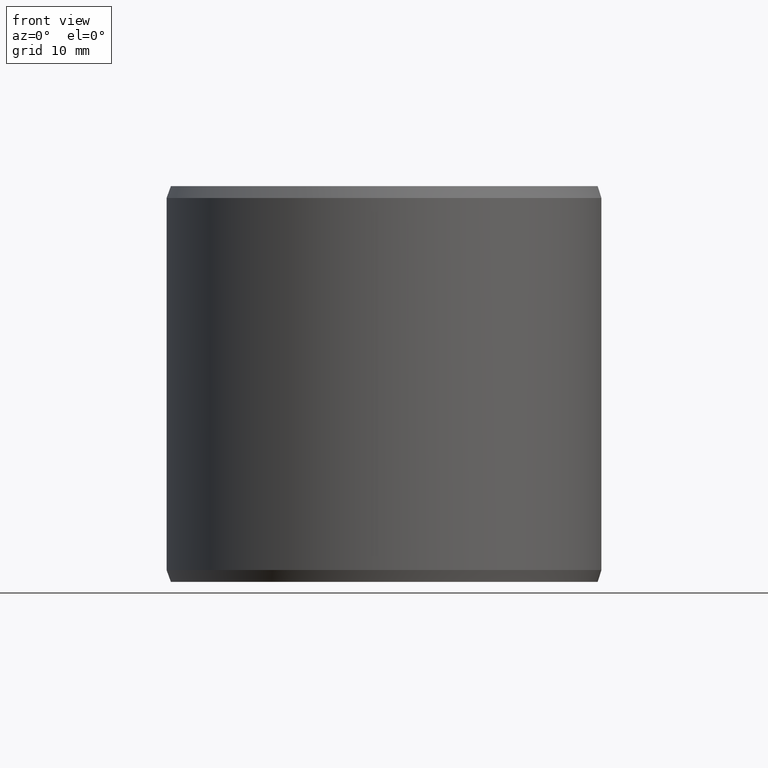
[diagram: clean part render]
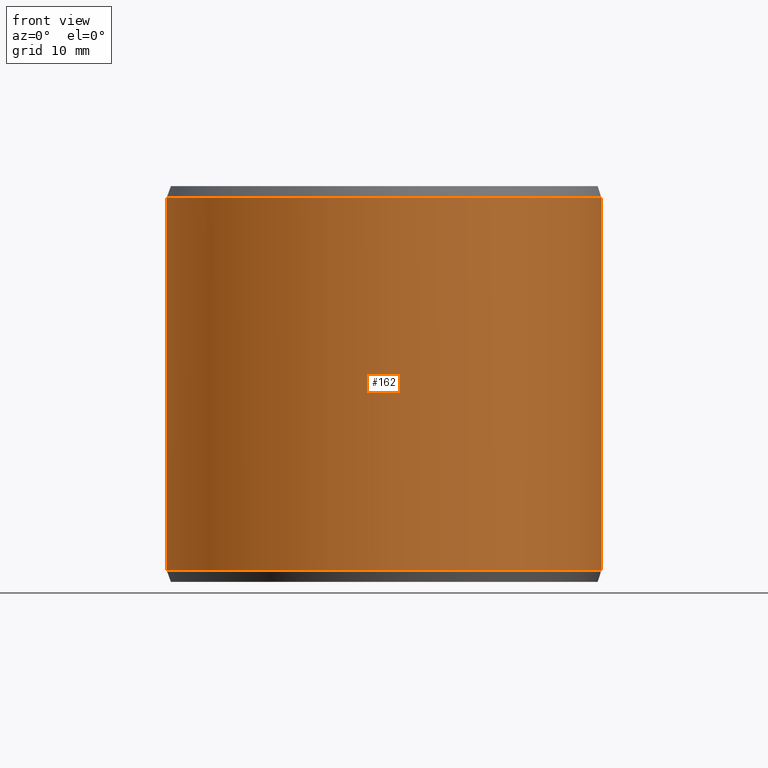
[diagram: same view with one face highlighted and labeled with its STEP entity id]
A machine part, front view. The second image highlights one B-rep face of the part: STEP entity #162.
In plain terms, the highlighted cylindrical surface (partial cylindrical patch) has radius 22 mm, axis along (-0, 0, -1).
Its self-contained STEP definition (entity closure, byte-faithful):
#162=ADVANCED_FACE('',(#185,#186),#187,.T.);
#185=FACE_OUTER_BOUND('',#211,.T.);
#186=FACE_BOUND('',#212,.T.);
#187=CYLINDRICAL_SURFACE('',#213,0.022);
#211=EDGE_LOOP('',(#289,#290,#291,#292));
#212=EDGE_LOOP('',(#293));
#213=AXIS2_PLACEMENT_3D('',#294,#295,#296);
#289=ORIENTED_EDGE('',*,*,#314,.T.);
#290=ORIENTED_EDGE('',*,*,#323,.F.);
#291=ORIENTED_EDGE('',*,*,#309,.F.);
#292=ORIENTED_EDGE('',*,*,#324,.T.);
#293=ORIENTED_EDGE('',*,*,#327,.T.);
#294=CARTESIAN_POINT('',(-6.93889390390723E-018,-6.93889390390723E-018,0.0));
#295=DIRECTION('',(6.12323399573677E-017,0.0,-1.0));
#296=DIRECTION('',(-1.0,0.0,-6.12323399573677E-017));
#309=EDGE_CURVE('',#341,#342,#343,.T.);
#314=EDGE_CURVE('',#351,#349,#352,.T.);
#323=EDGE_CURVE('',#342,#349,#365,.T.);
#324=EDGE_CURVE('',#341,#351,#366,.T.);
#327=EDGE_CURVE('',#370,#370,#371,.T.);
#341=VERTEX_POINT('',#389);
#342=VERTEX_POINT('',#390);
#343=CIRCLE('',#391,0.022);
#349=VERTEX_POINT('',#399);
#351=VERTEX_POINT('',#402);
#352=CIRCLE('',#403,0.022);
#365=LINE('',#422,#423);
#366=LINE('',#424,#425);
#370=VERTEX_POINT('',#495);
#371=B_SPLINE_CURVE_WITH_KNOTS('',3,(#496,#497,#498,#499,#500,#501,#502,#503,#504,#505,#506,#507,#508,#509,#510,#511,#512,#513,#514,#515,#516,#517,#518,#519,#520,#521,#522,#523,#524,#525,#526,#527,#528,#529,#530,#531,#532,#533,#534,#535,#536,#537,#538,#539,#540,#541,#542,#543,#544,#545,#546,#547,#548,#549,#550,#551,#552,#553,#554,#555,#556,#557,#558,#559,#560,#561),.UNSPECIFIED.,.T.,.F.,(2,2,2,2,2,2,2,2,2,2,2,2,2,2,2,2,2,2,2,2,2,2,2,2,2,2,2,2,2,2,2,2,2,2,2),(-0.000783143181487496,0.0,0.000783143181487496,0.00156628636297499,0.00234942954446249,0.00313257272594999,0.00391571590743748,0.00469885908892498,0.00548200227041248,0.00626514545189997,0.00704828863338747,0.00783143181487496,0.00861457499636246,0.00939771817784996,0.0101808613593375,0.010964004540825,0.0117471477223124,0.0125302909037999,0.0133134340852874,0.0140965772667749,0.0148797204482624,0.0156628636297499,0.0164460068112374,0.0172291499927249,0.0180122931742124,0.0187954363556999,0.0195785795371874,0.0203617227186749,0.0211448659001624,0.0219280090816499,0.0227111522631374,0.0234942954446249,0.0242774386261124,0.0250605818075999,0.0258437249890874),.UNSPECIFIED.);
#389=CARTESIAN_POINT('',(0.000383952941620232,0.0219966492934406,0.0012));
#390=CARTESIAN_POINT('',(-6.93889390390723E-018,0.022,0.0012));
#391=AXIS2_PLACEMENT_3D('',#575,#576,#577);
#399=CARTESIAN_POINT('',(-8.67361737988404E-018,0.022,0.0388));
#402=CARTESIAN_POINT('',(0.00038395294162023,0.0219966492934406,0.0388));
#403=AXIS2_PLACEMENT_3D('',#584,#585,#586);
#422=CARTESIAN_POINT('',(-6.93889390390723E-018,0.022,0.0012));
#423=VECTOR('',#599,1.0);
#424=CARTESIAN_POINT('',(0.000383952941620232,0.0219966492934406,0.0012));
#425=VECTOR('',#600,1.0);
#495=CARTESIAN_POINT('',(0.0164832116264059,-0.0145706463301777,0.02));
#496=CARTESIAN_POINT('',(0.0164832116264059,-0.0145706463301777,0.0197351496906929));
#497=CARTESIAN_POINT('',(0.0164832116264058,-0.0145706463301777,0.0202648503093071));
#498=CARTESIAN_POINT('',(0.0165007922203708,-0.0145508260703122,0.0205251622067491));
#499=CARTESIAN_POINT('',(0.0165691298990779,-0.014472961604862,0.0210371156822544));
#500=CARTESIAN_POINT('',(0.0166207341600073,-0.0144139371658827,0.0212914496460818));
#501=CARTESIAN_POINT('',(0.0167535756167427,-0.0142593159966995,0.0217755682362726));
#502=CARTESIAN_POINT('',(0.0168342249639935,-0.0141644069047839,0.022005092029244));
#503=CARTESIAN_POINT('',(0.0170217603192587,-0.0139384801444182,0.0224394736495143));
#504=CARTESIAN_POINT('',(0.0171293711168049,-0.0138064877587962,0.0226447052538363));
#505=CARTESIAN_POINT('',(0.0173599083670454,-0.013515474115946,0.0230128029697214));
#506=CARTESIAN_POINT('',(0.0174837557700863,-0.0133553932541377,0.023178183676375));
#507=CARTESIAN_POINT('',(0.0177469232667903,-0.0130036517703047,0.0234706254426348));
#508=CARTESIAN_POINT('',(0.0178837313304818,-0.0128152367302046,0.023594544595303));
#509=CARTESIAN_POINT('',(0.0181603114118631,-0.0124201943695015,0.023794225821988));
#510=CARTESIAN_POINT('',(0.0183021107450861,-0.0122106322407033,0.0238713306132433));
#511=CARTESIAN_POINT('',(0.0185839166479724,-0.0117773018754005,0.0239743061354708));
#512=CARTESIAN_POINT('',(0.0187217908055454,-0.0115569423212521,0.0239998471774273));
#513=CARTESIAN_POINT('',(0.018991172676394,-0.0111087230210648,0.0240001514682181));
#514=CARTESIAN_POINT('',(0.0191238945455463,-0.0108785404612039,0.0239740530286047));
#515=CARTESIAN_POINT('',(0.01937268558632,-0.0104290478150604,0.0238717685730337));
#516=CARTESIAN_POINT('',(0.0194897839087334,-0.0102082029811458,0.0237960955611503));
#517=CARTESIAN_POINT('',(0.0197105755255259,-0.00977508554264033,0.0235952766913464));
#518=CARTESIAN_POINT('',(0.0198133104249374,-0.00956451962695219,0.0234702787306186));
#519=CARTESIAN_POINT('',(0.0199985347712013,-0.00917092758091256,0.0231810494640605));
#520=CARTESIAN_POINT('',(0.0200824670445974,-0.00898497310037473,0.0230151529159647));
#521=CARTESIAN_POINT('',(0.020232833917774,-0.00864104483656754,0.0226430864639846));
#522=CARTESIAN_POINT('',(0.0202974777933827,-0.00848727628499315,0.0224417174980967));
#523=CARTESIAN_POINT('',(0.0204087110412513,-0.0082162021120089,0.0220091166018946));
#524=CARTESIAN_POINT('',(0.0204556499945846,-0.0080979470178954,0.0217750149544805));
#525=CARTESIAN_POINT('',(0.0205297130087779,-0.0079083023704716,0.02129139065483));
#526=CARTESIAN_POINT('',(0.0205571437777756,-0.00783623448227296,0.0210420806438573));
#527=CARTESIAN_POINT('',(0.0205941411690446,-0.00773848051433647,0.020528363873268));
#528=CARTESIAN_POINT('',(0.0206034789732122,-0.00771340743197346,0.0202629166769863));
#529=CARTESIAN_POINT('',(0.0206035532515159,-0.00771320902239598,0.0197402721264132));
#530=CARTESIAN_POINT('',(0.0205945894878762,-0.00773728702455651,0.0194801569585405));
#531=CARTESIAN_POINT('',(0.0205576283499689,-0.00783496287796358,0.0189624089064897));
#532=CARTESIAN_POINT('',(0.0205299444807146,-0.00790769287593807,0.0187107370270379));
#533=CARTESIAN_POINT('',(0.0204563789592809,-0.00809609701496201,0.0182291369060092));
#534=CARTESIAN_POINT('',(0.0204098260314475,-0.00821344684539773,0.0179957201867439));
#535=CARTESIAN_POINT('',(0.0202979883170471,-0.00848606964366565,0.0175597747687284));
#536=CARTESIAN_POINT('',(0.0202333591452295,-0.00863977285230835,0.0173587071208716));
#537=CARTESIAN_POINT('',(0.0200846034367308,-0.00898015601359946,0.0169896481410786));
#538=CARTESIAN_POINT('',(0.0199995915111697,-0.00916862874154441,0.0168208463995231));
#539=CARTESIAN_POINT('',(0.0198141968713226,-0.00956268874106001,0.0165308622681452));
#540=CARTESIAN_POINT('',(0.0197132728871417,-0.00976964484825074,0.0164077010317899));
#541=CARTESIAN_POINT('',(0.019492594203149,-0.0102028358614273,0.016205949069181));
#542=CARTESIAN_POINT('',(0.0193737545601679,-0.0104270385981468,0.0161289039247809));
#543=CARTESIAN_POINT('',(0.0191259460157752,-0.0108749109737287,0.0160265602843506));
#544=CARTESIAN_POINT('',(0.018995297348443,-0.0111017337879936,0.0160002015611302));
#545=CARTESIAN_POINT('',(0.0187231887184215,-0.0115547400952863,0.0159998007400759));
#546=CARTESIAN_POINT('',(0.018585160995672,-0.0117752924410838,0.0160255274942246));
#547=CARTESIAN_POINT('',(0.0183057213277933,-0.0122051746393596,0.0161270666687465));
#548=CARTESIAN_POINT('',(0.018162750316762,-0.0124166522299629,0.0162042259827015));
#549=CARTESIAN_POINT('',(0.017884770908397,-0.0128138097856585,0.0164044949002063));
#550=CARTESIAN_POINT('',(0.0177493025849922,-0.0130003896303061,0.016527148792191));
#551=CARTESIAN_POINT('',(0.017487229491962,-0.0133508305917212,0.0168175472080746));
#552=CARTESIAN_POINT('',(0.0173609939161183,-0.0135140796145733,0.0169856724618444));
#553=CARTESIAN_POINT('',(0.0171304851349107,-0.0138051054551251,0.0173533092590707));
#554=CARTESIAN_POINT('',(0.0170246957468154,-0.0139349120134622,0.0175543205589722));
#555=CARTESIAN_POINT('',(0.0168350930759152,-0.0141633922214927,0.0179923155537983));
#556=CARTESIAN_POINT('',(0.0167541762205813,-0.0142586073548318,0.0182228127804311));
#557=CARTESIAN_POINT('',(0.0166218830187279,-0.0144126093904359,0.018703801205469));
#558=CARTESIAN_POINT('',(0.0165700609516065,-0.0144718981744799,0.018957107970222));
#559=CARTESIAN_POINT('',(0.016500796372854,-0.014550823886436,0.0194736241396767));
#560=CARTESIAN_POINT('',(0.0164832116264059,-0.0145706463301777,0.0197351496906929));
#561=CARTESIAN_POINT('',(0.0164832116264058,-0.0145706463301777,0.0202648503093071));
#575=CARTESIAN_POINT('',(-6.93889390390723E-018,-6.93889390390723E-018,0.0012));
#576=DIRECTION('',(6.12323399573677E-017,0.0,-1.0));
#577=DIRECTION('',(-1.0,0.0,-6.12323399573677E-017));
#584=CARTESIAN_POINT('',(-8.67361737988404E-018,-6.93889390390723E-018,0.0388));
#585=DIRECTION('',(6.12323399573677E-017,0.0,-1.0));
#586=DIRECTION('',(-1.0,0.0,-6.12323399573677E-017));
#599=DIRECTION('',(-4.61362626589576E-017,-1.8454505063583E-016,1.0));
#600=DIRECTION('',(-4.93593170943353E-017,-1.84780406407375E-016,1.0));